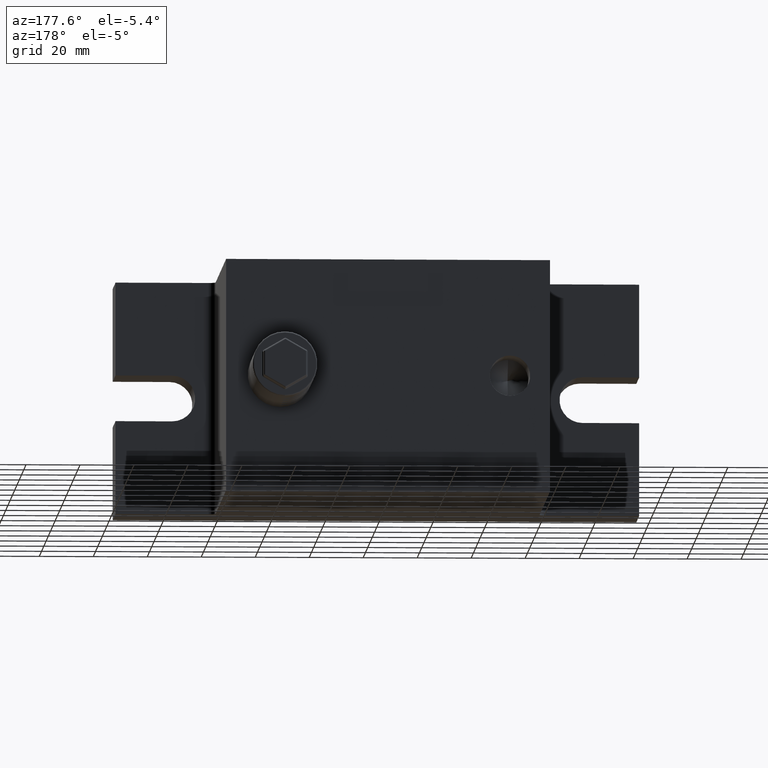
[diagram: clean part render]
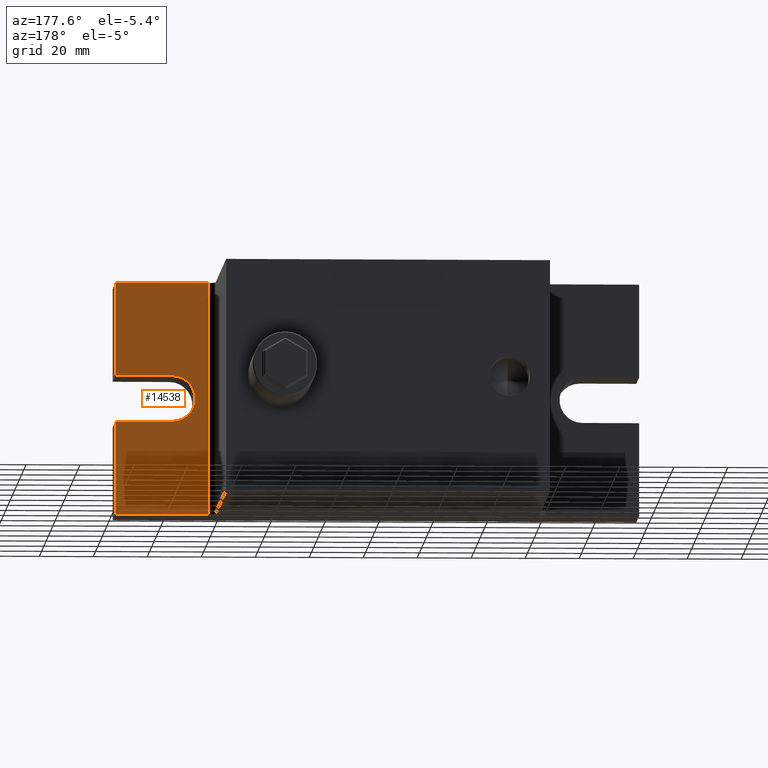
[diagram: same view with one face highlighted and labeled with its STEP entity id]
A machine part, auxiliary view. The second image highlights one B-rep face of the part: STEP entity #14538.
In plain terms, the highlighted planar face has unit normal (0, -1, 0).
Its self-contained STEP definition (entity closure, byte-faithful):
#1163 = VECTOR ( 'NONE', #21200, 1000.000000000000000 ) ;
#1167 = VERTEX_POINT ( 'NONE', #15986 ) ;
#2360 = CARTESIAN_POINT ( 'NONE',  ( 97.00000000000000000, -35.00000000000000000, -8.500000000000000000 ) ) ;
#2462 = LINE ( 'NONE', #17670, #1163 ) ;
#2637 = DIRECTION ( 'NONE',  ( 0.0000000000000000000, 0.0000000000000000000, 1.000000000000000000 ) ) ;
#3002 = AXIS2_PLACEMENT_3D ( 'NONE', #21373, #16264, #6042 ) ;
#3389 = CARTESIAN_POINT ( 'NONE',  ( 76.00000000000000000, -35.00000000000000000, -6.429183357567479800E-015 ) ) ;
#3732 = VERTEX_POINT ( 'NONE', #6862 ) ;
#3950 = EDGE_CURVE ( 'NONE', #12412, #3732, #13718, .T. ) ;
#4530 = CARTESIAN_POINT ( 'NONE',  ( 97.00000000000000000, -35.00000000000000000, 8.500000000000000000 ) ) ;
#4713 = DIRECTION ( 'NONE',  ( 0.0000000000000000000, 0.0000000000000000000, 1.000000000000000000 ) ) ;
#5788 = EDGE_CURVE ( 'NONE', #12412, #9085, #17522, .T. ) ;
#5993 = VECTOR ( 'NONE', #4713, 1000.000000000000000 ) ;
#6042 = DIRECTION ( 'NONE',  ( 0.0000000000000000000, 0.0000000000000000000, -1.000000000000000000 ) ) ;
#6577 = AXIS2_PLACEMENT_3D ( 'NONE', #3389, #20400, #22020 ) ;
#6601 = VECTOR ( 'NONE', #17755, 1000.000000000000000 ) ;
#6619 = EDGE_CURVE ( 'NONE', #10159, #8327, #11142, .T. ) ;
#6862 = CARTESIAN_POINT ( 'NONE',  ( 62.50000000000000000, -35.00000000000000000, 43.00000000000000000 ) ) ;
#6919 = ORIENTED_EDGE ( 'NONE', *, *, #3950, .T. ) ;
#7591 = VECTOR ( 'NONE', #14406, 1000.000000000000000 ) ;
#8065 = CARTESIAN_POINT ( 'NONE',  ( 62.50000000000000000, -35.00000000000000000, 43.00000000000000000 ) ) ;
#8327 = VERTEX_POINT ( 'NONE', #19903 ) ;
#8590 = CARTESIAN_POINT ( 'NONE',  ( 97.00000000000000000, -35.00000000000000000, -43.00000000000000000 ) ) ;
#8816 = CIRCLE ( 'NONE', #6577, 8.500000000000000000 ) ;
#8873 = VECTOR ( 'NONE', #17942, 1000.000000000000000 ) ;
#8994 = LINE ( 'NONE', #11216, #13002 ) ;
#9085 = VERTEX_POINT ( 'NONE', #12543 ) ;
#9243 = FACE_OUTER_BOUND ( 'NONE', #18656, .T. ) ;
#9462 = PLANE ( 'NONE',  #3002 ) ;
#10048 = ORIENTED_EDGE ( 'NONE', *, *, #21918, .F. ) ;
#10159 = VERTEX_POINT ( 'NONE', #11530 ) ;
#10383 = EDGE_CURVE ( 'NONE', #3732, #1167, #2462, .T. ) ;
#11142 = LINE ( 'NONE', #2360, #6601 ) ;
#11216 = CARTESIAN_POINT ( 'NONE',  ( 97.00000000000000000, -35.00000000000000000, -43.00000000000000000 ) ) ;
#11453 = ORIENTED_EDGE ( 'NONE', *, *, #10383, .T. ) ;
#11530 = CARTESIAN_POINT ( 'NONE',  ( 97.00000000000000000, -35.00000000000000000, -8.500000000000000000 ) ) ;
#12159 = ORIENTED_EDGE ( 'NONE', *, *, #5788, .F. ) ;
#12412 = VERTEX_POINT ( 'NONE', #19575 ) ;
#12543 = CARTESIAN_POINT ( 'NONE',  ( 97.00000000000000000, -35.00000000000000000, -43.00000000000000000 ) ) ;
#12561 = VERTEX_POINT ( 'NONE', #19620 ) ;
#12677 = CARTESIAN_POINT ( 'NONE',  ( 97.00000000000000000, -35.00000000000000000, 8.500000000000000000 ) ) ;
#13002 = VECTOR ( 'NONE', #2637, 1000.000000000000000 ) ;
#13235 = EDGE_CURVE ( 'NONE', #8327, #12561, #8816, .T. ) ;
#13612 = ORIENTED_EDGE ( 'NONE', *, *, #19263, .F. ) ;
#13718 = LINE ( 'NONE', #8065, #5993 ) ;
#14054 = ORIENTED_EDGE ( 'NONE', *, *, #6619, .F. ) ;
#14115 = LINE ( 'NONE', #8590, #16510 ) ;
#14406 = DIRECTION ( 'NONE',  ( 1.000000000000000000, 0.0000000000000000000, 0.0000000000000000000 ) ) ;
#14538 = ADVANCED_FACE ( 'NONE', ( #9243 ), #9462, .F. ) ;
#15653 = CARTESIAN_POINT ( 'NONE',  ( 97.00000000000000000, -35.00000000000000000, -43.00000000000000000 ) ) ;
#15986 = CARTESIAN_POINT ( 'NONE',  ( 97.00000000000000000, -35.00000000000000000, 43.00000000000000000 ) ) ;
#16264 = DIRECTION ( 'NONE',  ( 0.0000000000000000000, -1.000000000000000000, 0.0000000000000000000 ) ) ;
#16510 = VECTOR ( 'NONE', #20682, 1000.000000000000000 ) ;
#16627 = LINE ( 'NONE', #12677, #8873 ) ;
#16782 = EDGE_CURVE ( 'NONE', #12561, #19052, #16627, .T. ) ;
#17522 = LINE ( 'NONE', #15653, #7591 ) ;
#17670 = CARTESIAN_POINT ( 'NONE',  ( 97.00000000000000000, -35.00000000000000000, 43.00000000000000000 ) ) ;
#17755 = DIRECTION ( 'NONE',  ( -1.000000000000000000, 0.0000000000000000000, 4.130293990420965000E-016 ) ) ;
#17942 = DIRECTION ( 'NONE',  ( 1.000000000000000000, 0.0000000000000000000, -2.478176394252580200E-016 ) ) ;
#18656 = EDGE_LOOP ( 'NONE', ( #10048, #21434, #21841, #14054, #13612, #12159, #6919, #11453 ) ) ;
#19052 = VERTEX_POINT ( 'NONE', #4530 ) ;
#19263 = EDGE_CURVE ( 'NONE', #9085, #10159, #14115, .T. ) ;
#19575 = CARTESIAN_POINT ( 'NONE',  ( 62.50000000000000000, -35.00000000000000000, -43.00000000000000000 ) ) ;
#19620 = CARTESIAN_POINT ( 'NONE',  ( 76.00000000000000000, -35.00000000000000000, 8.500000000000000000 ) ) ;
#19903 = CARTESIAN_POINT ( 'NONE',  ( 76.00000000000000000, -35.00000000000000000, -8.500000000000000000 ) ) ;
#20400 = DIRECTION ( 'NONE',  ( 0.0000000000000000000, 1.000000000000000000, 0.0000000000000000000 ) ) ;
#20682 = DIRECTION ( 'NONE',  ( 0.0000000000000000000, 0.0000000000000000000, 1.000000000000000000 ) ) ;
#21200 = DIRECTION ( 'NONE',  ( 1.000000000000000000, 0.0000000000000000000, 0.0000000000000000000 ) ) ;
#21373 = CARTESIAN_POINT ( 'NONE',  ( 97.00000000000000000, -35.00000000000000000, -43.00000000000000000 ) ) ;
#21434 = ORIENTED_EDGE ( 'NONE', *, *, #16782, .F. ) ;
#21841 = ORIENTED_EDGE ( 'NONE', *, *, #13235, .F. ) ;
#21918 = EDGE_CURVE ( 'NONE', #19052, #1167, #8994, .T. ) ;
#22020 = DIRECTION ( 'NONE',  ( 0.0000000000000000000, 0.0000000000000000000, 1.000000000000000000 ) ) ;